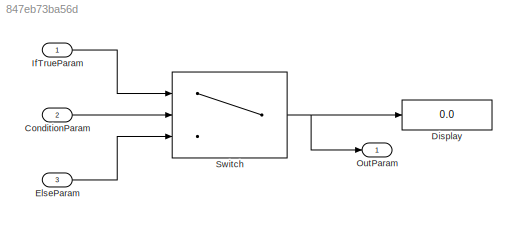
MODEL slx_847eb73ba56d
KIND model
CONFIG AbsTol = auto
CONFIG EnableMultiTasking = off
CONFIG FixedStep = auto
CONFIG MaxStep = auto
CONFIG MinStep = auto
CONFIG RelTol = 1e-3
CONFIG SampleTimeConstraint = Unconstrained
CONFIG Solver = FixedStepDiscrete
CONFIG SolverName = FixedStepDiscrete
CONFIG StartTime = 0.0
CONFIG StopTime = 10.0
BLOCK [Inport] ConditionParam
  IconDisplay = Port number
  Port = 2
BLOCK [Display] Display
  Decimation = 1
  Ports = [1]
BLOCK [Inport] ElseParam
  IconDisplay = Port number
  Port = 3
BLOCK [Inport] IfTrueParam
  IconDisplay = Port number
BLOCK [Outport] OutParam
  IconDisplay = Port number
BLOCK [Switch] Switch
  InputSameDT = off
  SaturateOnIntegerOverflow = off
  Threshold = 5
LINE ConditionParam:1 -> Switch:2
LINE ElseParam:1 -> Switch:3
LINE IfTrueParam:1 -> Switch:1
NET Switch:1 -> Display:1, OutParam:1
note: NET lines group one-source signal fan-out (src -> all destinations, sorted); 1:1 wires keep LINE
